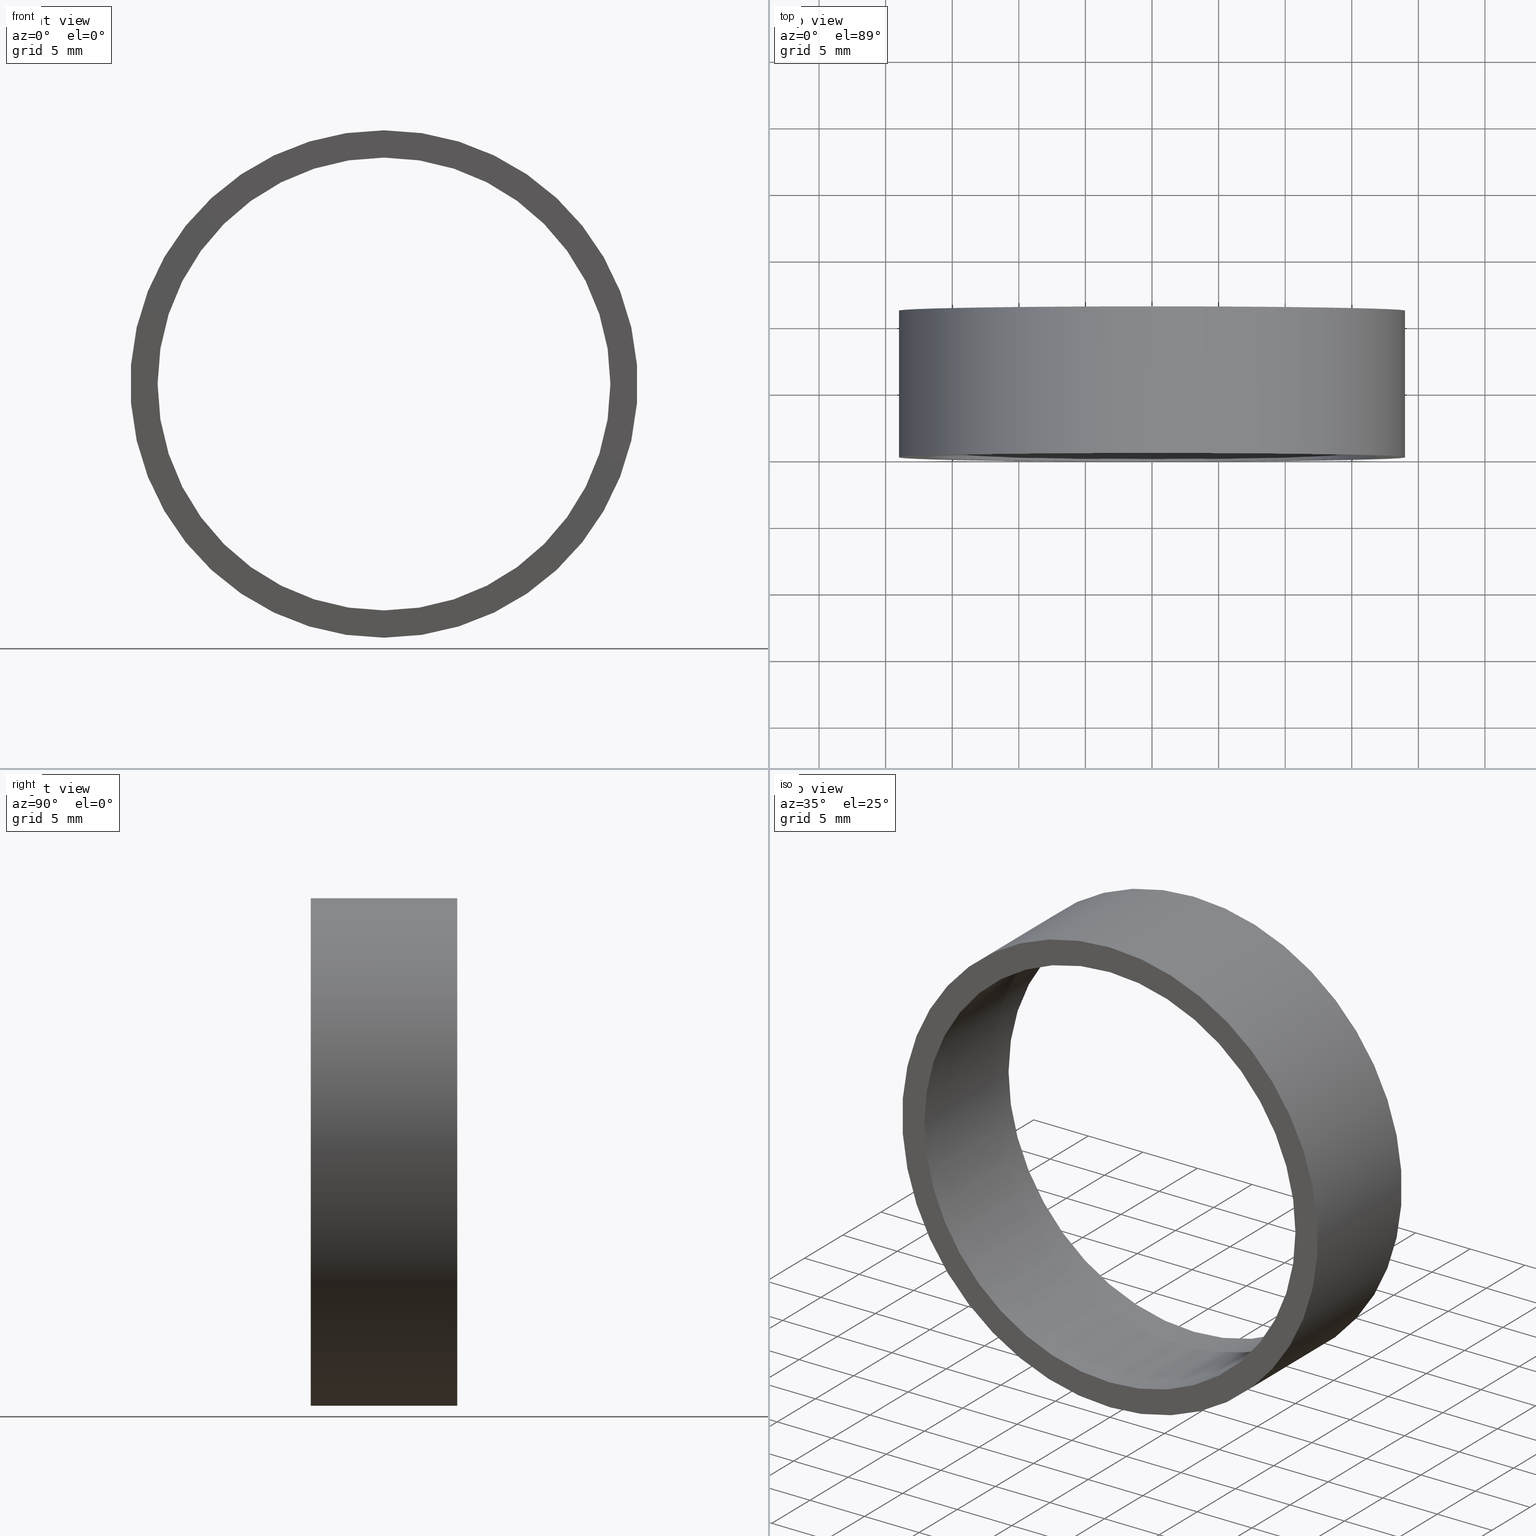
[diagram: canonical four-view strip — front | top / right | iso, engineering-drawing reading convention]
A machine part, canonical four-view strip (front | top / right | iso — engineering-drawing reading convention). The complete STEP part file that produces these views, byte-faithful:
ISO-10303-21;
HEADER;
FILE_DESCRIPTION (( 'STEP AP214' ),
    '1' );
FILE_NAME ('504053.STEP',
    '2019-09-05T07:33:59',
    ( 'user' ),
    ( '΢���й�' ),
    'SwSTEP 2.0',
    'SolidWorks 2016',
    '' );
FILE_SCHEMA (( 'AUTOMOTIVE_DESIGN' ));
ENDSEC;

DATA;
#1 = STYLED_ITEM ( 'NONE', ( #70 ), #226 ) ;
#2 = ORIENTED_EDGE ( 'NONE', *, *, #179, .F. ) ;
#3 = EDGE_CURVE ( 'NONE', #229, #156, #155, .T. ) ;
#4 = VERTEX_POINT ( 'NONE', #63 ) ;
#5 = CIRCLE ( 'NONE', #128, 19.05000000000000100 ) ;
#6 =( LENGTH_UNIT ( ) NAMED_UNIT ( * ) SI_UNIT ( .MILLI., .METRE. ) );
#7 = VERTEX_POINT ( 'NONE', #48 ) ;
#8 = UNCERTAINTY_MEASURE_WITH_UNIT (LENGTH_MEASURE( 1.000000000000000100E-005 ), #6, 'distance_accuracy_value', 'NONE');
#9 = EDGE_LOOP ( 'NONE', ( #222, #180, #197, #87 ) ) ;
#10 = ADVANCED_FACE ( 'NONE', ( #84, #218 ), #68, .F. ) ;
#11 = FACE_OUTER_BOUND ( 'NONE', #159, .T. ) ;
#12 = SURFACE_STYLE_USAGE ( .BOTH. , #143 ) ;
#13 = EDGE_LOOP ( 'NONE', ( #89, #225 ) ) ;
#14 = VECTOR ( 'NONE', #216, 1000.000000000000000 ) ;
#15 = CARTESIAN_POINT ( 'NONE',  ( 0.0000000000000000000, 0.0000000000000000000, 0.0000000000000000000 ) ) ;
#16 = AXIS2_PLACEMENT_3D ( 'NONE', #227, #90, #57 ) ;
#17 = ORIENTED_EDGE ( 'NONE', *, *, #190, .T. ) ;
#18 = AXIS2_PLACEMENT_3D ( 'NONE', #213, #85, #67 ) ;
#19 = CIRCLE ( 'NONE', #18, 17.00000000000000000 ) ;
#20 = VERTEX_POINT ( 'NONE', #189 ) ;
#21 = EDGE_LOOP ( 'NONE', ( #146, #52 ) ) ;
#22 = SURFACE_SIDE_STYLE ('',( #195 ) ) ;
#23 = PRODUCT_DEFINITION ( 'δ֪', '', #69, #148 ) ;
#24 = FILL_AREA_STYLE ('',( #116 ) ) ;
#25 = CARTESIAN_POINT ( 'NONE',  ( 2.332952152375708000E-015, 0.0000000000000000000, 19.05000000000000100 ) ) ;
#26 = AXIS2_PLACEMENT_3D ( 'NONE', #15, #201, #124 ) ;
#27 = COLOUR_RGB ( '',1.000000000000000000, 1.000000000000000000, 1.000000000000000000 ) ;
#28 = STYLED_ITEM ( 'NONE', ( #170 ), #140 ) ;
#29 = SURFACE_SIDE_STYLE ('',( #234 ) ) ;
#30 = ORIENTED_EDGE ( 'NONE', *, *, #133, .F. ) ;
#31 =( NAMED_UNIT ( * ) SI_UNIT ( $, .STERADIAN. ) SOLID_ANGLE_UNIT ( ) );
#32 = FACE_OUTER_BOUND ( 'NONE', #114, .T. ) ;
#33 = PRODUCT_CONTEXT ( 'NONE', #215, 'mechanical' ) ;
#34 = AXIS2_PLACEMENT_3D ( 'NONE', #153, #96, #174 ) ;
#35 = PRESENTATION_LAYER_ASSIGNMENT (  '', '', ( #28 ) ) ;
#36 = DIRECTION ( 'NONE',  ( 0.0000000000000000000, 1.000000000000000000, 0.0000000000000000000 ) ) ;
#37 = ORIENTED_EDGE ( 'NONE', *, *, #92, .F. ) ;
#38 = LINE ( 'NONE', #111, #98 ) ;
#39 = CARTESIAN_POINT ( 'NONE',  ( 0.0000000000000000000, 11.00000000000000000, -19.05000000000000100 ) ) ;
#40 =( LENGTH_UNIT ( ) NAMED_UNIT ( * ) SI_UNIT ( .MILLI., .METRE. ) );
#41 = LINE ( 'NONE', #39, #14 ) ;
#42 = MECHANICAL_DESIGN_GEOMETRIC_PRESENTATION_REPRESENTATION (  '', ( #112 ), #235 ) ;
#43 =( NAMED_UNIT ( * ) SI_UNIT ( $, .STERADIAN. ) SOLID_ANGLE_UNIT ( ) );
#44 = ORIENTED_EDGE ( 'NONE', *, *, #3, .F. ) ;
#45 = PRODUCT_DEFINITION_SHAPE ( 'NONE', 'NONE',  #23 ) ;
#46 = PRODUCT_RELATED_PRODUCT_CATEGORY ( 'part', '', ( #131 ) ) ;
#47 = EDGE_LOOP ( 'NONE', ( #182, #119 ) ) ;
#48 = CARTESIAN_POINT ( 'NONE',  ( 2.081899558550500300E-015, 11.00000000000000000, 17.00000000000000000 ) ) ;
#49 = DIRECTION ( 'NONE',  ( 0.0000000000000000000, 0.0000000000000000000, 1.000000000000000000 ) ) ;
#50 =( NAMED_UNIT ( * ) PLANE_ANGLE_UNIT ( ) SI_UNIT ( $, .RADIAN. ) );
#51 = AXIS2_PLACEMENT_3D ( 'NONE', #241, #36, #183 ) ;
#52 = ORIENTED_EDGE ( 'NONE', *, *, #79, .F. ) ;
#53 = PRESENTATION_STYLE_ASSIGNMENT (( #206 ) ) ;
#54 = ORIENTED_EDGE ( 'NONE', *, *, #179, .T. ) ;
#55 = EDGE_CURVE ( 'NONE', #4, #7, #142, .T. ) ;
#56 = VECTOR ( 'NONE', #188, 1000.000000000000000 ) ;
#57 = DIRECTION ( 'NONE',  ( 0.0000000000000000000, 0.0000000000000000000, 1.000000000000000000 ) ) ;
#58 = ORIENTED_EDGE ( 'NONE', *, *, #200, .F. ) ;
#59 = VECTOR ( 'NONE', #203, 1000.000000000000000 ) ;
#60 = AXIS2_PLACEMENT_3D ( 'NONE', #106, #175, #157 ) ;
#61 = ORIENTED_EDGE ( 'NONE', *, *, #3, .T. ) ;
#62 = CARTESIAN_POINT ( 'NONE',  ( 0.0000000000000000000, 11.00000000000000000, 0.0000000000000000000 ) ) ;
#63 = CARTESIAN_POINT ( 'NONE',  ( 0.0000000000000000000, 11.00000000000000000, -17.00000000000000000 ) ) ;
#64 = ORIENTED_EDGE ( 'NONE', *, *, #239, .T. ) ;
#65 = FACE_OUTER_BOUND ( 'NONE', #13, .T. ) ;
#66 = MANIFOLD_SOLID_BREP ( '͹̨-����1', #151 ) ;
#67 = DIRECTION ( 'NONE',  ( 0.0000000000000000000, 0.0000000000000000000, 1.000000000000000000 ) ) ;
#68 = PLANE ( 'NONE',  #177 ) ;
#69 = PRODUCT_DEFINITION_FORMATION_WITH_SPECIFIED_SOURCE ( '�κ�', '', #131, .NOT_KNOWN. ) ;
#70 = PRESENTATION_STYLE_ASSIGNMENT (( #130 ) ) ;
#71 = CIRCLE ( 'NONE', #60, 19.05000000000000100 ) ;
#72 = CARTESIAN_POINT ( 'NONE',  ( 2.081899558550500300E-015, 11.00000000000000000, 17.00000000000000000 ) ) ;
#73 = CYLINDRICAL_SURFACE ( 'NONE', #173, 19.05000000000000100 ) ;
#74 = SURFACE_STYLE_USAGE ( .BOTH. , #22 ) ;
#75 = FILL_AREA_STYLE ('',( #127 ) ) ;
#76 = FACE_BOUND ( 'NONE', #47, .T. ) ;
#77 =( NAMED_UNIT ( * ) SI_UNIT ( $, .STERADIAN. ) SOLID_ANGLE_UNIT ( ) );
#78 = DIRECTION ( 'NONE',  ( 0.0000000000000000000, 0.0000000000000000000, -1.000000000000000000 ) ) ;
#79 = EDGE_CURVE ( 'NONE', #138, #20, #82, .T. ) ;
#80 = EDGE_LOOP ( 'NONE', ( #103, #232, #64, #44 ) ) ;
#81 = PRESENTATION_LAYER_ASSIGNMENT (  '', '', ( #112 ) ) ;
#82 = CIRCLE ( 'NONE', #93, 19.05000000000000100 ) ;
#83 = DIRECTION ( 'NONE',  ( -0.0000000000000000000, -1.000000000000000000, -0.0000000000000000000 ) ) ;
#84 = FACE_OUTER_BOUND ( 'NONE', #21, .T. ) ;
#85 = DIRECTION ( 'NONE',  ( 0.0000000000000000000, 1.000000000000000000, 0.0000000000000000000 ) ) ;
#86 = DIRECTION ( 'NONE',  ( -0.0000000000000000000, -1.000000000000000000, -0.0000000000000000000 ) ) ;
#87 = ORIENTED_EDGE ( 'NONE', *, *, #239, .F. ) ;
#88 =( GEOMETRIC_REPRESENTATION_CONTEXT ( 3 ) GLOBAL_UNCERTAINTY_ASSIGNED_CONTEXT ( ( #212 ) ) GLOBAL_UNIT_ASSIGNED_CONTEXT ( ( #166, #240, #184 ) ) REPRESENTATION_CONTEXT ( 'NONE', 'WORKASPACE' ) );
#89 = ORIENTED_EDGE ( 'NONE', *, *, #133, .T. ) ;
#90 = DIRECTION ( 'NONE',  ( 0.0000000000000000000, 1.000000000000000000, 0.0000000000000000000 ) ) ;
#91 = COLOUR_RGB ( '',1.000000000000000000, 1.000000000000000000, 1.000000000000000000 ) ;
#92 = EDGE_CURVE ( 'NONE', #168, #221, #71, .T. ) ;
#93 = AXIS2_PLACEMENT_3D ( 'NONE', #134, #108, #132 ) ;
#94 = DIRECTION ( 'NONE',  ( 0.0000000000000000000, 1.000000000000000000, 0.0000000000000000000 ) ) ;
#95 = ADVANCED_FACE ( 'NONE', ( #65, #76 ), #205, .T. ) ;
#96 = DIRECTION ( 'NONE',  ( -0.0000000000000000000, -1.000000000000000000, -0.0000000000000000000 ) ) ;
#97 =( GEOMETRIC_REPRESENTATION_CONTEXT ( 3 ) GLOBAL_UNCERTAINTY_ASSIGNED_CONTEXT ( ( #8 ) ) GLOBAL_UNIT_ASSIGNED_CONTEXT ( ( #6, #186, #43 ) ) REPRESENTATION_CONTEXT ( 'NONE', 'WORKASPACE' ) );
#98 = VECTOR ( 'NONE', #214, 1000.000000000000000 ) ;
#99 = DIRECTION ( 'NONE',  ( 0.0000000000000000000, 1.000000000000000000, 0.0000000000000000000 ) ) ;
#100 = FACE_OUTER_BOUND ( 'NONE', #80, .T. ) ;
#101 = DIRECTION ( 'NONE',  ( 0.0000000000000000000, 0.0000000000000000000, 1.000000000000000000 ) ) ;
#102 = DIRECTION ( 'NONE',  ( 0.0000000000000000000, 1.000000000000000000, 0.0000000000000000000 ) ) ;
#103 = ORIENTED_EDGE ( 'NONE', *, *, #193, .F. ) ;
#104 = CARTESIAN_POINT ( 'NONE',  ( 0.0000000000000000000, 0.0000000000000000000, 0.0000000000000000000 ) ) ;
#105 = LINE ( 'NONE', #191, #56 ) ;
#106 = CARTESIAN_POINT ( 'NONE',  ( 0.0000000000000000000, 11.00000000000000000, 0.0000000000000000000 ) ) ;
#107 = CIRCLE ( 'NONE', #16, 17.00000000000000000 ) ;
#108 = DIRECTION ( 'NONE',  ( 0.0000000000000000000, 1.000000000000000000, 0.0000000000000000000 ) ) ;
#109 = EDGE_LOOP ( 'NONE', ( #165, #61 ) ) ;
#110 = ORIENTED_EDGE ( 'NONE', *, *, #79, .T. ) ;
#111 = CARTESIAN_POINT ( 'NONE',  ( 0.0000000000000000000, 11.00000000000000000, -17.00000000000000000 ) ) ;
#112 = STYLED_ITEM ( 'NONE', ( #202 ), #66 ) ;
#113 = CARTESIAN_POINT ( 'NONE',  ( 2.332952152375708000E-015, 11.00000000000000000, 19.05000000000000100 ) ) ;
#114 = EDGE_LOOP ( 'NONE', ( #2, #30, #207, #17 ) ) ;
#115 = AXIS2_PLACEMENT_3D ( 'NONE', #243, #223, #49 ) ;
#116 = FILL_AREA_STYLE_COLOUR ( '', #198 ) ;
#117 = UNCERTAINTY_MEASURE_WITH_UNIT (LENGTH_MEASURE( 1.000000000000000100E-005 ), #40, 'distance_accuracy_value', 'NONE');
#118 = APPLICATION_PROTOCOL_DEFINITION ( 'draft international standard', 'automotive_design', 1998, #136 ) ;
#119 = ORIENTED_EDGE ( 'NONE', *, *, #194, .F. ) ;
#120 = FILL_AREA_STYLE_COLOUR ( '', #27 ) ;
#121 = CARTESIAN_POINT ( 'NONE',  ( 0.0000000000000000000, 0.0000000000000000000, -17.00000000000000000 ) ) ;
#122 = PRESENTATION_LAYER_ASSIGNMENT (  '', '', ( #1 ) ) ;
#123 = CARTESIAN_POINT ( 'NONE',  ( 0.0000000000000000000, 0.0000000000000000000, 0.0000000000000000000 ) ) ;
#124 = DIRECTION ( 'NONE',  ( 1.000000000000000000, 0.0000000000000000000, 0.0000000000000000000 ) ) ;
#125 =( LENGTH_UNIT ( ) NAMED_UNIT ( * ) SI_UNIT ( .MILLI., .METRE. ) );
#126 =( LENGTH_UNIT ( ) NAMED_UNIT ( * ) SI_UNIT ( .MILLI., .METRE. ) );
#127 = FILL_AREA_STYLE_COLOUR ( '', #91 ) ;
#128 = AXIS2_PLACEMENT_3D ( 'NONE', #123, #99, #178 ) ;
#129 = MECHANICAL_DESIGN_GEOMETRIC_PRESENTATION_REPRESENTATION (  '', ( #141 ), #196 ) ;
#130 = SURFACE_STYLE_USAGE ( .BOTH. , #219 ) ;
#131 = PRODUCT ( '504053', '504053', '', ( #33 ) ) ;
#132 = DIRECTION ( 'NONE',  ( 0.0000000000000000000, 0.0000000000000000000, 1.000000000000000000 ) ) ;
#133 = EDGE_CURVE ( 'NONE', #221, #168, #144, .T. ) ;
#134 = CARTESIAN_POINT ( 'NONE',  ( 0.0000000000000000000, 0.0000000000000000000, 0.0000000000000000000 ) ) ;
#135 = DIRECTION ( 'NONE',  ( 0.0000000000000000000, 0.0000000000000000000, -1.000000000000000000 ) ) ;
#136 = APPLICATION_CONTEXT ( 'automotive_design' ) ;
#137 = AXIS2_PLACEMENT_3D ( 'NONE', #167, #86, #150 ) ;
#138 = VERTEX_POINT ( 'NONE', #25 ) ;
#139 =( NAMED_UNIT ( * ) PLANE_ANGLE_UNIT ( ) SI_UNIT ( $, .RADIAN. ) );
#140 = ADVANCED_FACE ( 'NONE', ( #187 ), #163, .F. ) ;
#141 = STYLED_ITEM ( 'NONE', ( #53 ), #237 ) ;
#142 = CIRCLE ( 'NONE', #154, 17.00000000000000000 ) ;
#143 = SURFACE_SIDE_STYLE ('',( #220 ) ) ;
#144 = CIRCLE ( 'NONE', #115, 19.05000000000000100 ) ;
#145 = CARTESIAN_POINT ( 'NONE',  ( 2.081899558550500300E-015, 0.0000000000000000000, 17.00000000000000000 ) ) ;
#146 = ORIENTED_EDGE ( 'NONE', *, *, #190, .F. ) ;
#147 = ADVANCED_FACE ( 'NONE', ( #11 ), #73, .T. ) ;
#148 = PRODUCT_DEFINITION_CONTEXT ( 'detailed design', #136, 'design' ) ;
#149 = MECHANICAL_DESIGN_GEOMETRIC_PRESENTATION_REPRESENTATION (  '', ( #28 ), #97 ) ;
#150 = DIRECTION ( 'NONE',  ( 0.0000000000000000000, 0.0000000000000000000, -1.000000000000000000 ) ) ;
#151 = CLOSED_SHELL ( 'NONE', ( #140, #147, #95, #10, #176, #237 ) ) ;
#152 = COLOUR_RGB ( '',1.000000000000000000, 1.000000000000000000, 1.000000000000000000 ) ;
#153 = CARTESIAN_POINT ( 'NONE',  ( 0.0000000000000000000, 11.00000000000000000, 0.0000000000000000000 ) ) ;
#154 = AXIS2_PLACEMENT_3D ( 'NONE', #62, #231, #236 ) ;
#155 = CIRCLE ( 'NONE', #169, 17.00000000000000000 ) ;
#156 = VERTEX_POINT ( 'NONE', #121 ) ;
#157 = DIRECTION ( 'NONE',  ( 0.0000000000000000000, 0.0000000000000000000, 1.000000000000000000 ) ) ;
#158 = UNCERTAINTY_MEASURE_WITH_UNIT (LENGTH_MEASURE( 1.000000000000000100E-005 ), #126, 'distance_accuracy_value', 'NONE');
#159 = EDGE_LOOP ( 'NONE', ( #37, #54, #110, #58 ) ) ;
#160 = CARTESIAN_POINT ( 'NONE',  ( 0.0000000000000000000, 11.00000000000000000, -19.05000000000000100 ) ) ;
#161 = UNCERTAINTY_MEASURE_WITH_UNIT (LENGTH_MEASURE( 1.000000000000000100E-005 ), #125, 'distance_accuracy_value', 'NONE');
#162 = SURFACE_STYLE_FILL_AREA ( #24 ) ;
#163 = CYLINDRICAL_SURFACE ( 'NONE', #137, 17.00000000000000000 ) ;
#164 =( GEOMETRIC_REPRESENTATION_CONTEXT ( 3 ) GLOBAL_UNCERTAINTY_ASSIGNED_CONTEXT ( ( #117 ) ) GLOBAL_UNIT_ASSIGNED_CONTEXT ( ( #40, #50, #31 ) ) REPRESENTATION_CONTEXT ( 'NONE', 'WORKASPACE' ) );
#165 = ORIENTED_EDGE ( 'NONE', *, *, #204, .T. ) ;
#166 =( LENGTH_UNIT ( ) NAMED_UNIT ( * ) SI_UNIT ( .MILLI., .METRE. ) );
#167 = CARTESIAN_POINT ( 'NONE',  ( 0.0000000000000000000, 11.00000000000000000, 0.0000000000000000000 ) ) ;
#168 = VERTEX_POINT ( 'NONE', #113 ) ;
#169 = AXIS2_PLACEMENT_3D ( 'NONE', #185, #94, #101 ) ;
#170 = PRESENTATION_STYLE_ASSIGNMENT (( #12 ) ) ;
#171 = CYLINDRICAL_SURFACE ( 'NONE', #228, 19.05000000000000100 ) ;
#172 = DIRECTION ( 'NONE',  ( -0.0000000000000000000, -1.000000000000000000, -0.0000000000000000000 ) ) ;
#173 = AXIS2_PLACEMENT_3D ( 'NONE', #242, #83, #78 ) ;
#174 = DIRECTION ( 'NONE',  ( 0.0000000000000000000, 0.0000000000000000000, -1.000000000000000000 ) ) ;
#175 = DIRECTION ( 'NONE',  ( 0.0000000000000000000, 1.000000000000000000, 0.0000000000000000000 ) ) ;
#176 = ADVANCED_FACE ( 'NONE', ( #32 ), #171, .T. ) ;
#177 = AXIS2_PLACEMENT_3D ( 'NONE', #104, #102, #224 ) ;
#178 = DIRECTION ( 'NONE',  ( 0.0000000000000000000, 0.0000000000000000000, 1.000000000000000000 ) ) ;
#179 = EDGE_CURVE ( 'NONE', #168, #138, #105, .T. ) ;
#180 = ORIENTED_EDGE ( 'NONE', *, *, #193, .T. ) ;
#181 = MECHANICAL_DESIGN_GEOMETRIC_PRESENTATION_REPRESENTATION (  '', ( #1 ), #164 ) ;
#182 = ORIENTED_EDGE ( 'NONE', *, *, #55, .F. ) ;
#183 = DIRECTION ( 'NONE',  ( 0.0000000000000000000, -0.0000000000000000000, 1.000000000000000000 ) ) ;
#184 =( NAMED_UNIT ( * ) SI_UNIT ( $, .STERADIAN. ) SOLID_ANGLE_UNIT ( ) );
#185 = CARTESIAN_POINT ( 'NONE',  ( 0.0000000000000000000, 0.0000000000000000000, 0.0000000000000000000 ) ) ;
#186 =( NAMED_UNIT ( * ) PLANE_ANGLE_UNIT ( ) SI_UNIT ( $, .RADIAN. ) );
#187 = FACE_OUTER_BOUND ( 'NONE', #9, .T. ) ;
#188 = DIRECTION ( 'NONE',  ( -0.0000000000000000000, -1.000000000000000000, -0.0000000000000000000 ) ) ;
#189 = CARTESIAN_POINT ( 'NONE',  ( 0.0000000000000000000, 0.0000000000000000000, -19.05000000000000100 ) ) ;
#190 = EDGE_CURVE ( 'NONE', #20, #138, #5, .T. ) ;
#191 = CARTESIAN_POINT ( 'NONE',  ( 2.332952152375708000E-015, 11.00000000000000000, 19.05000000000000100 ) ) ;
#192 = SHAPE_DEFINITION_REPRESENTATION ( #45, #226 ) ;
#193 = EDGE_CURVE ( 'NONE', #7, #229, #211, .T. ) ;
#194 = EDGE_CURVE ( 'NONE', #7, #4, #107, .T. ) ;
#195 = SURFACE_STYLE_FILL_AREA ( #75 ) ;
#196 =( GEOMETRIC_REPRESENTATION_CONTEXT ( 3 ) GLOBAL_UNCERTAINTY_ASSIGNED_CONTEXT ( ( #158 ) ) GLOBAL_UNIT_ASSIGNED_CONTEXT ( ( #126, #139, #210 ) ) REPRESENTATION_CONTEXT ( 'NONE', 'WORKASPACE' ) );
#197 = ORIENTED_EDGE ( 'NONE', *, *, #204, .F. ) ;
#198 = COLOUR_RGB ( '',1.000000000000000000, 1.000000000000000000, 1.000000000000000000 ) ;
#199 = CARTESIAN_POINT ( 'NONE',  ( 0.0000000000000000000, 11.00000000000000000, 0.0000000000000000000 ) ) ;
#200 = EDGE_CURVE ( 'NONE', #221, #20, #41, .T. ) ;
#201 = DIRECTION ( 'NONE',  ( 0.0000000000000000000, 0.0000000000000000000, 1.000000000000000000 ) ) ;
#202 = PRESENTATION_STYLE_ASSIGNMENT (( #74 ) ) ;
#203 = DIRECTION ( 'NONE',  ( -0.0000000000000000000, -1.000000000000000000, -0.0000000000000000000 ) ) ;
#204 = EDGE_CURVE ( 'NONE', #156, #229, #19, .T. ) ;
#205 = PLANE ( 'NONE',  #51 ) ;
#206 = SURFACE_STYLE_USAGE ( .BOTH. , #29 ) ;
#207 = ORIENTED_EDGE ( 'NONE', *, *, #200, .T. ) ;
#208 = FILL_AREA_STYLE ('',( #233 ) ) ;
#209 =( NAMED_UNIT ( * ) PLANE_ANGLE_UNIT ( ) SI_UNIT ( $, .RADIAN. ) );
#210 =( NAMED_UNIT ( * ) SI_UNIT ( $, .STERADIAN. ) SOLID_ANGLE_UNIT ( ) );
#211 = LINE ( 'NONE', #72, #59 ) ;
#212 = UNCERTAINTY_MEASURE_WITH_UNIT (LENGTH_MEASURE( 1.000000000000000100E-005 ), #166, 'distance_accuracy_value', 'NONE');
#213 = CARTESIAN_POINT ( 'NONE',  ( 0.0000000000000000000, 0.0000000000000000000, 0.0000000000000000000 ) ) ;
#214 = DIRECTION ( 'NONE',  ( -0.0000000000000000000, -1.000000000000000000, -0.0000000000000000000 ) ) ;
#215 = APPLICATION_CONTEXT ( 'automotive_design' ) ;
#216 = DIRECTION ( 'NONE',  ( -0.0000000000000000000, -1.000000000000000000, -0.0000000000000000000 ) ) ;
#217 = PRESENTATION_LAYER_ASSIGNMENT (  '', '', ( #141 ) ) ;
#218 = FACE_BOUND ( 'NONE', #109, .T. ) ;
#219 = SURFACE_SIDE_STYLE ('',( #162 ) ) ;
#220 = SURFACE_STYLE_FILL_AREA ( #208 ) ;
#221 = VERTEX_POINT ( 'NONE', #160 ) ;
#222 = ORIENTED_EDGE ( 'NONE', *, *, #55, .T. ) ;
#223 = DIRECTION ( 'NONE',  ( 0.0000000000000000000, 1.000000000000000000, 0.0000000000000000000 ) ) ;
#224 = DIRECTION ( 'NONE',  ( 0.0000000000000000000, -0.0000000000000000000, 1.000000000000000000 ) ) ;
#225 = ORIENTED_EDGE ( 'NONE', *, *, #92, .T. ) ;
#226 = ADVANCED_BREP_SHAPE_REPRESENTATION ( '504053', ( #66, #26 ), #88 ) ;
#227 = CARTESIAN_POINT ( 'NONE',  ( 0.0000000000000000000, 11.00000000000000000, 0.0000000000000000000 ) ) ;
#228 = AXIS2_PLACEMENT_3D ( 'NONE', #199, #172, #135 ) ;
#229 = VERTEX_POINT ( 'NONE', #145 ) ;
#230 = CYLINDRICAL_SURFACE ( 'NONE', #34, 17.00000000000000000 ) ;
#231 = DIRECTION ( 'NONE',  ( 0.0000000000000000000, 1.000000000000000000, 0.0000000000000000000 ) ) ;
#232 = ORIENTED_EDGE ( 'NONE', *, *, #194, .T. ) ;
#233 = FILL_AREA_STYLE_COLOUR ( '', #152 ) ;
#234 = SURFACE_STYLE_FILL_AREA ( #244 ) ;
#235 =( GEOMETRIC_REPRESENTATION_CONTEXT ( 3 ) GLOBAL_UNCERTAINTY_ASSIGNED_CONTEXT ( ( #161 ) ) GLOBAL_UNIT_ASSIGNED_CONTEXT ( ( #125, #209, #77 ) ) REPRESENTATION_CONTEXT ( 'NONE', 'WORKASPACE' ) );
#236 = DIRECTION ( 'NONE',  ( 0.0000000000000000000, 0.0000000000000000000, 1.000000000000000000 ) ) ;
#237 = ADVANCED_FACE ( 'NONE', ( #100 ), #230, .F. ) ;
#238 = APPLICATION_PROTOCOL_DEFINITION ( 'draft international standard', 'automotive_design', 1998, #215 ) ;
#239 = EDGE_CURVE ( 'NONE', #4, #156, #38, .T. ) ;
#240 =( NAMED_UNIT ( * ) PLANE_ANGLE_UNIT ( ) SI_UNIT ( $, .RADIAN. ) );
#241 = CARTESIAN_POINT ( 'NONE',  ( 0.0000000000000000000, 11.00000000000000000, 0.0000000000000000000 ) ) ;
#242 = CARTESIAN_POINT ( 'NONE',  ( 0.0000000000000000000, 11.00000000000000000, 0.0000000000000000000 ) ) ;
#243 = CARTESIAN_POINT ( 'NONE',  ( 0.0000000000000000000, 11.00000000000000000, 0.0000000000000000000 ) ) ;
#244 = FILL_AREA_STYLE ('',( #120 ) ) ;
ENDSEC;
END-ISO-10303-21;
